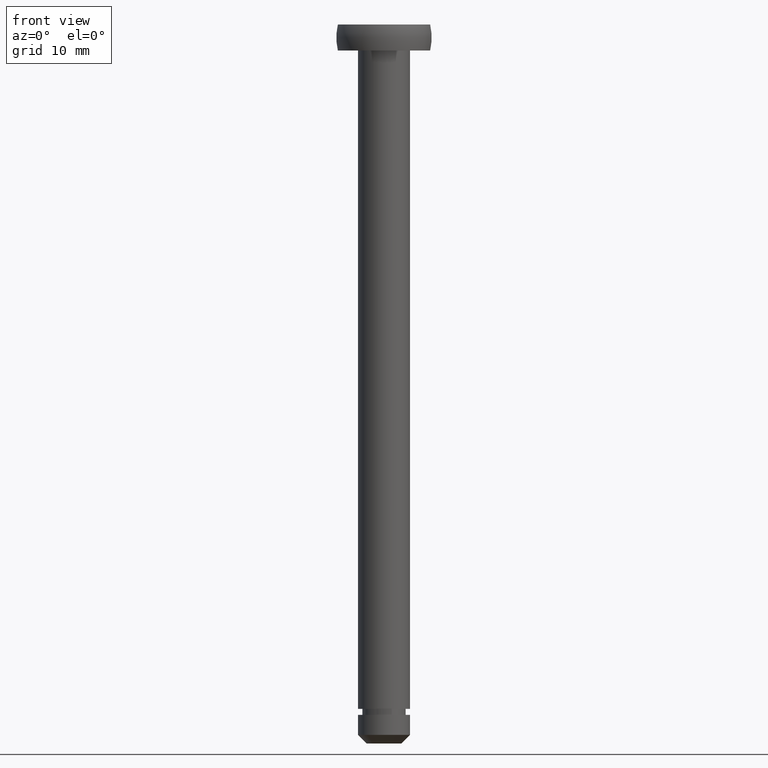
[diagram: clean part render]
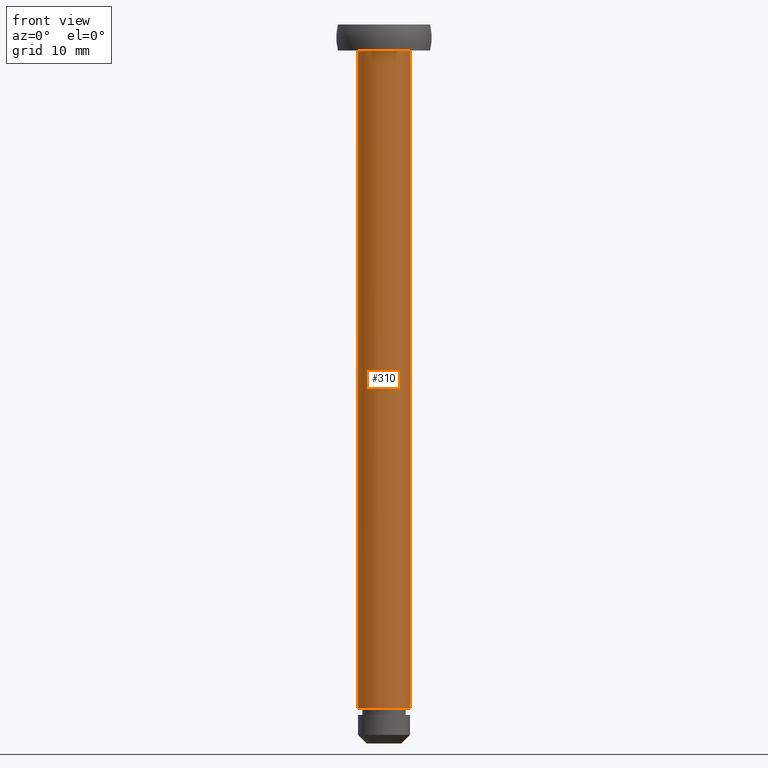
[diagram: same view with one face highlighted and labeled with its STEP entity id]
A machine part, front view. The second image highlights one B-rep face of the part: STEP entity #310.
In plain terms, the highlighted cylindrical surface (edge-blend (fillet) strip) has radius 3 mm, axis along (0, 0, -1).
Its self-contained STEP definition (entity closure, byte-faithful):
#3 = LINE ( 'NONE', #65, #351 ) ;
#11 = ORIENTED_EDGE ( 'NONE', *, *, #382, .F. ) ;
#30 = VERTEX_POINT ( 'NONE', #120 ) ;
#38 = VERTEX_POINT ( 'NONE', #140 ) ;
#52 = CIRCLE ( 'NONE', #448, 3.000000000000000000 ) ;
#61 = CIRCLE ( 'NONE', #143, 3.000000000000000000 ) ;
#65 = CARTESIAN_POINT ( 'NONE',  ( -3.000000000000000000, 0.0000000000000000000, 83.00000000000000000 ) ) ;
#67 = DIRECTION ( 'NONE',  ( -1.000000000000000000, 0.0000000000000000000, 0.0000000000000000000 ) ) ;
#69 = VECTOR ( 'NONE', #226, 1000.000000000000000 ) ;
#120 = CARTESIAN_POINT ( 'NONE',  ( 3.000000000000000000, 3.673940397442059900E-016, 4.000000000000114600 ) ) ;
#140 = CARTESIAN_POINT ( 'NONE',  ( -3.000000000000000000, 0.0000000000000000000, 4.000000000000114600 ) ) ;
#142 = DIRECTION ( 'NONE',  ( 0.0000000000000000000, 0.0000000000000000000, -1.000000000000000000 ) ) ;
#143 = AXIS2_PLACEMENT_3D ( 'NONE', #169, #142, #180 ) ;
#144 = VERTEX_POINT ( 'NONE', #420 ) ;
#149 = DIRECTION ( 'NONE',  ( 0.0000000000000000000, 0.0000000000000000000, -1.000000000000000000 ) ) ;
#164 = ORIENTED_EDGE ( 'NONE', *, *, #248, .T. ) ;
#169 = CARTESIAN_POINT ( 'NONE',  ( 0.0000000000000000000, 0.0000000000000000000, 79.99999998195649200 ) ) ;
#180 = DIRECTION ( 'NONE',  ( -1.000000000000000000, 0.0000000000000000000, 0.0000000000000000000 ) ) ;
#212 = ORIENTED_EDGE ( 'NONE', *, *, #368, .F. ) ;
#226 = DIRECTION ( 'NONE',  ( 0.0000000000000000000, 0.0000000000000000000, -1.000000000000000000 ) ) ;
#248 = EDGE_CURVE ( 'NONE', #144, #332, #61, .T. ) ;
#260 = EDGE_CURVE ( 'NONE', #332, #38, #3, .T. ) ;
#285 = DIRECTION ( 'NONE',  ( 0.0000000000000000000, 0.0000000000000000000, -1.000000000000000000 ) ) ;
#301 = ORIENTED_EDGE ( 'NONE', *, *, #260, .T. ) ;
#310 = ADVANCED_FACE ( 'NONE', ( #322 ), #336, .T. ) ;
#315 = DIRECTION ( 'NONE',  ( 0.0000000000000000000, 0.0000000000000000000, -1.000000000000000000 ) ) ;
#322 = FACE_OUTER_BOUND ( 'NONE', #407, .T. ) ;
#332 = VERTEX_POINT ( 'NONE', #373 ) ;
#336 = CYLINDRICAL_SURFACE ( 'NONE', #370, 3.000000000000000000 ) ;
#351 = VECTOR ( 'NONE', #285, 1000.000000000000000 ) ;
#368 = EDGE_CURVE ( 'NONE', #30, #38, #52, .T. ) ;
#370 = AXIS2_PLACEMENT_3D ( 'NONE', #451, #315, #454 ) ;
#373 = CARTESIAN_POINT ( 'NONE',  ( -3.000000000000000000, 0.0000000000000000000, 79.99999998195649200 ) ) ;
#382 = EDGE_CURVE ( 'NONE', #144, #30, #446, .T. ) ;
#407 = EDGE_LOOP ( 'NONE', ( #11, #164, #301, #212 ) ) ;
#420 = CARTESIAN_POINT ( 'NONE',  ( 3.000000000000000000, 3.673940397442059900E-016, 79.99999998195649200 ) ) ;
#446 = LINE ( 'NONE', #459, #69 ) ;
#448 = AXIS2_PLACEMENT_3D ( 'NONE', #466, #149, #67 ) ;
#451 = CARTESIAN_POINT ( 'NONE',  ( 0.0000000000000000000, 0.0000000000000000000, 83.00000000000000000 ) ) ;
#454 = DIRECTION ( 'NONE',  ( -1.000000000000000000, 0.0000000000000000000, 0.0000000000000000000 ) ) ;
#459 = CARTESIAN_POINT ( 'NONE',  ( 3.000000000000000000, 3.673940397442059900E-016, 83.00000000000000000 ) ) ;
#466 = CARTESIAN_POINT ( 'NONE',  ( 0.0000000000000000000, 0.0000000000000000000, 4.000000000000114600 ) ) ;